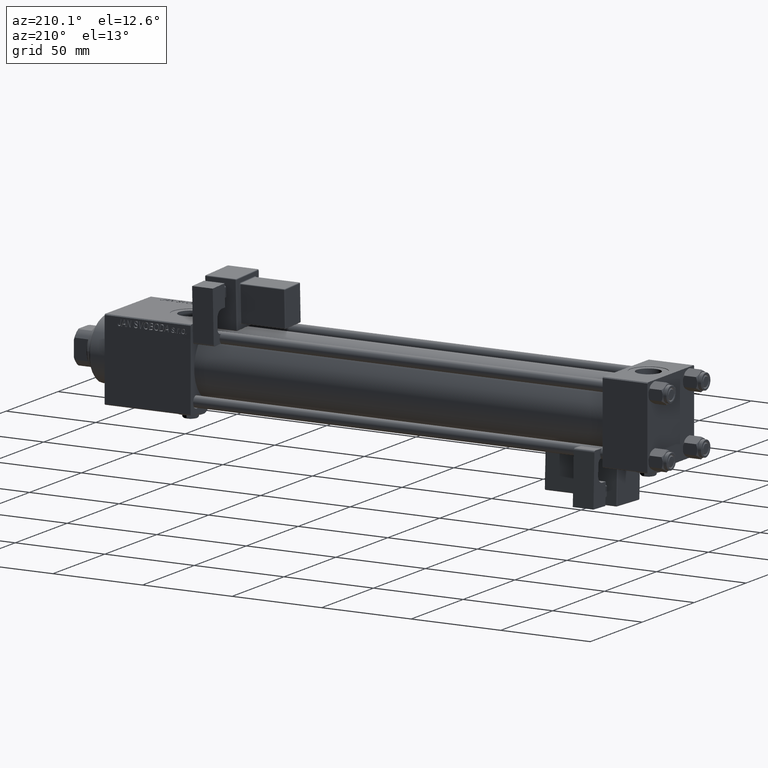
[diagram: clean part render]
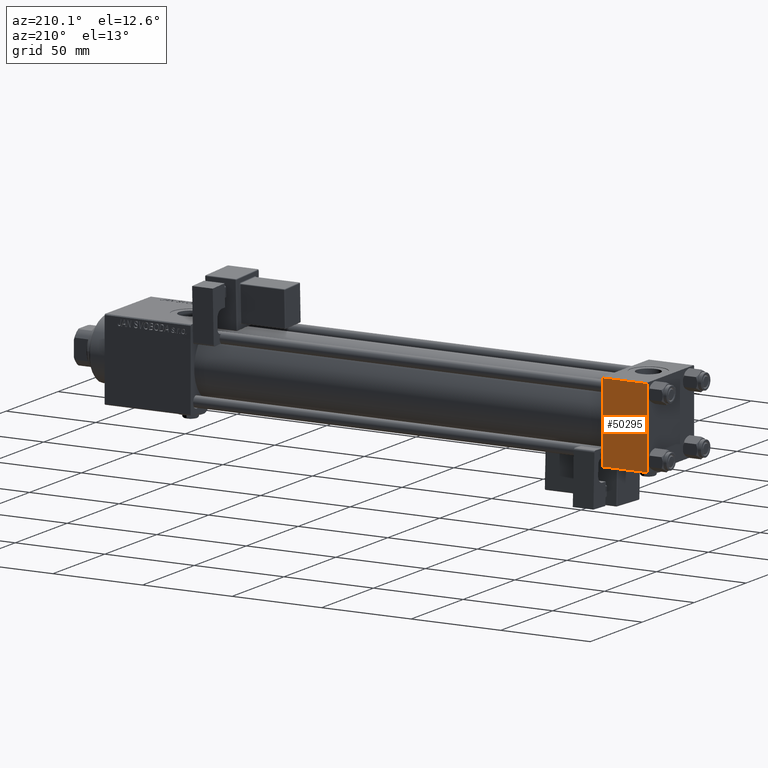
[diagram: same view with one face highlighted and labeled with its STEP entity id]
A machine part, auxiliary view. The second image highlights one B-rep face of the part: STEP entity #50295.
In plain terms, the highlighted planar face has unit normal (0, 1, 0).
Its self-contained STEP definition (entity closure, byte-faithful):
#1008 = LINE ( 'NONE', #35122, #2271 ) ;
#1919 = ORIENTED_EDGE ( 'NONE', *, *, #33710, .T. ) ;
#2271 = VECTOR ( 'NONE', #26129, 1000.000000000000000 ) ;
#5100 = CARTESIAN_POINT ( 'NONE',  ( 25.00000000000000000, 22.50000000000000000, 22.50000000000000355 ) ) ;
#5380 = FACE_OUTER_BOUND ( 'NONE', #22096, .T. ) ;
#9315 = VERTEX_POINT ( 'NONE', #55545 ) ;
#11551 = CARTESIAN_POINT ( 'NONE',  ( 25.00000000000000000, 22.50000000000000000, -21.99999999999996803 ) ) ;
#13945 = DIRECTION ( 'NONE',  ( 0.000000000000000000, 0.000000000000000000, -1.000000000000000000 ) ) ;
#16533 = DIRECTION ( 'NONE',  ( 1.000000000000000000, 0.000000000000000000, 0.000000000000000000 ) ) ;
#17093 = LINE ( 'NONE', #20765, #51402 ) ;
#17311 = EDGE_CURVE ( 'NONE', #9315, #27057, #44396, .T. ) ;
#18048 = PLANE ( 'NONE',  #37411 ) ;
#19319 = LINE ( 'NONE', #52890, #32374 ) ;
#19327 = VERTEX_POINT ( 'NONE', #30425 ) ;
#20765 = CARTESIAN_POINT ( 'NONE',  ( 25.00000000000000000, 22.50000000000000000, 21.99999999999999645 ) ) ;
#22096 = EDGE_LOOP ( 'NONE', ( #25618, #41004, #29879, #1919 ) ) ;
#24702 = CARTESIAN_POINT ( 'NONE',  ( 0.000000000000000000, 22.50000000000000000, -21.99999999999996803 ) ) ;
#25618 = ORIENTED_EDGE ( 'NONE', *, *, #30366, .T. ) ;
#26129 = DIRECTION ( 'NONE',  ( -1.000000000000000000, 0.000000000000000000, 0.000000000000000000 ) ) ;
#26935 = DIRECTION ( 'NONE',  ( 0.000000000000000000, 0.000000000000000000, -1.000000000000000000 ) ) ;
#27057 = VERTEX_POINT ( 'NONE', #24702 ) ;
#29312 = VECTOR ( 'NONE', #13945, 1000.000000000000000 ) ;
#29879 = ORIENTED_EDGE ( 'NONE', *, *, #17311, .F. ) ;
#29915 = DIRECTION ( 'NONE',  ( -0.000000000000000000, 1.000000000000000000, 0.000000000000000000 ) ) ;
#30366 = EDGE_CURVE ( 'NONE', #19327, #33274, #19319, .T. ) ;
#30425 = CARTESIAN_POINT ( 'NONE',  ( 25.00000000000000000, 22.50000000000000000, 21.99999999999999645 ) ) ;
#31712 = CARTESIAN_POINT ( 'NONE',  ( 0.000000000000000000, 22.50000000000000000, 22.50000000000000355 ) ) ;
#32374 = VECTOR ( 'NONE', #26935, 1000.000000000000000 ) ;
#33274 = VERTEX_POINT ( 'NONE', #11551 ) ;
#33710 = EDGE_CURVE ( 'NONE', #9315, #19327, #17093, .T. ) ;
#35122 = CARTESIAN_POINT ( 'NONE',  ( 25.00000000000000000, 22.50000000000000000, -21.99999999999998224 ) ) ;
#37411 = AXIS2_PLACEMENT_3D ( 'NONE', #5100, #29915, #39471 ) ;
#39471 = DIRECTION ( 'NONE',  ( 0.000000000000000000, -0.000000000000000000, 1.000000000000000000 ) ) ;
#41004 = ORIENTED_EDGE ( 'NONE', *, *, #49535, .T. ) ;
#44396 = LINE ( 'NONE', #31712, #29312 ) ;
#49535 = EDGE_CURVE ( 'NONE', #33274, #27057, #1008, .T. ) ;
#50295 = ADVANCED_FACE ( 'NONE', ( #5380 ), #18048, .T. ) ;
#51402 = VECTOR ( 'NONE', #16533, 1000.000000000000000 ) ;
#52890 = CARTESIAN_POINT ( 'NONE',  ( 25.00000000000000000, 22.50000000000000000, 22.50000000000000355 ) ) ;
#55545 = CARTESIAN_POINT ( 'NONE',  ( 0.000000000000000000, 22.50000000000000000, 21.99999999999999645 ) ) ;